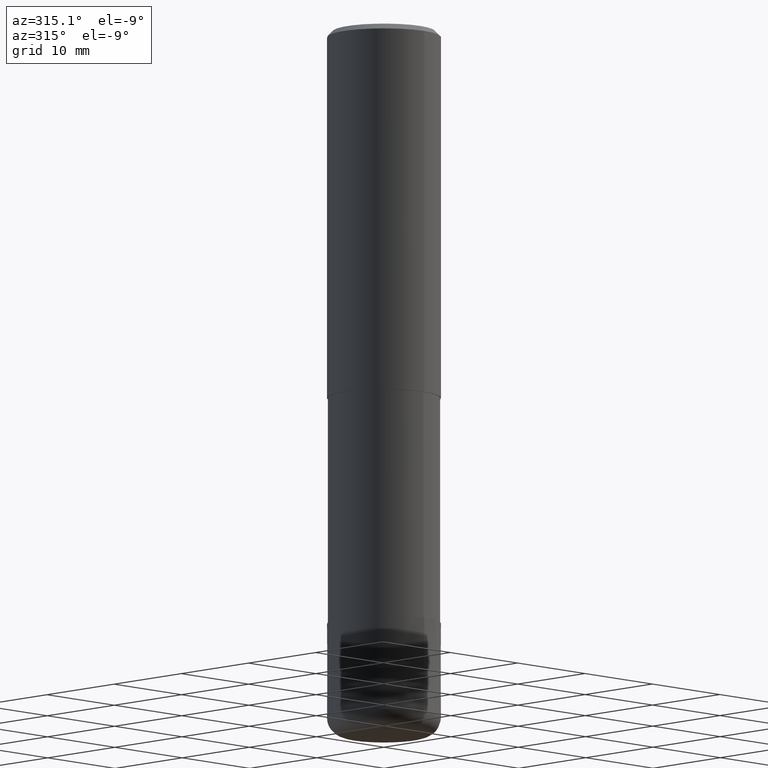
[diagram: clean part render]
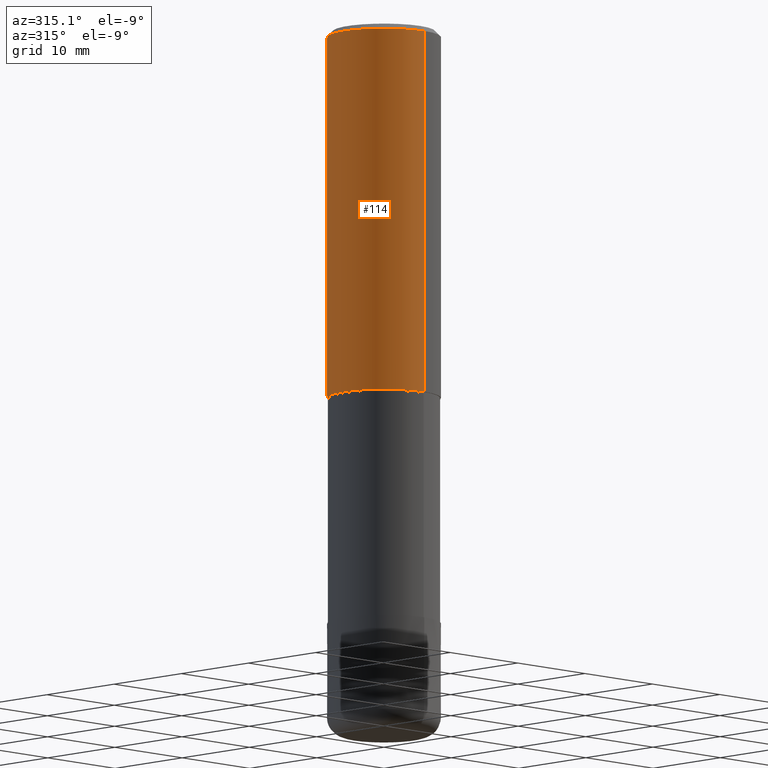
[diagram: same view with one face highlighted and labeled with its STEP entity id]
A machine part, auxiliary view. The second image highlights one B-rep face of the part: STEP entity #114.
In plain terms, the highlighted cylindrical surface (partial cylindrical patch) has radius 6 mm, axis along (-0, -0, 1).
Its self-contained STEP definition (entity closure, byte-faithful):
#100=VERTEX_POINT('',#239);
#114=ADVANCED_FACE('',(#254),#255,.T.);
#124=EDGE_CURVE('',#144,#200,#265,.T.);
#136=EDGE_CURVE('',#100,#166,#280,.T.);
#140=EDGE_CURVE('',#100,#200,#285,.T.);
#144=VERTEX_POINT('',#289);
#166=VERTEX_POINT('',#314);
#168=EDGE_CURVE('',#166,#144,#316,.T.);
#200=VERTEX_POINT('',#353);
#239=CARTESIAN_POINT('',(7.34763812293426E-016,-6.0,-39.0));
#254=FACE_OUTER_BOUND('',#406,.T.);
#255=CYLINDRICAL_SURFACE('',#407,6.0);
#265=LINE('',#417,#418);
#280=LINE('',#436,#437);
#285=CIRCLE('',#443,6.0);
#289=CARTESIAN_POINT('',(0.0,6.0,-0.600000000000001));
#314=CARTESIAN_POINT('',(7.34763812293426E-016,-6.0,-0.600000000000001));
#316=CIRCLE('',#484,6.0);
#353=CARTESIAN_POINT('',(0.0,6.0,-39.0));
#406=EDGE_LOOP('',(#577,#578,#579,#580));
#407=AXIS2_PLACEMENT_3D('',#581,#582,#583);
#417=CARTESIAN_POINT('',(-7.34763812293426E-016,6.0,-19.8));
#418=VECTOR('',#585,1.0);
#436=CARTESIAN_POINT('',(7.34763812293426E-016,-6.0,-19.8));
#437=VECTOR('',#608,1.0);
#443=AXIS2_PLACEMENT_3D('',#615,#616,#617);
#484=AXIS2_PLACEMENT_3D('',#654,#655,#656);
#577=ORIENTED_EDGE('',*,*,#124,.T.);
#578=ORIENTED_EDGE('',*,*,#140,.F.);
#579=ORIENTED_EDGE('',*,*,#136,.T.);
#580=ORIENTED_EDGE('',*,*,#168,.T.);
#581=CARTESIAN_POINT('',(0.0,0.0,-19.8));
#582=DIRECTION('',(-0.0,-0.0,1.0));
#583=DIRECTION('',(0.0,1.0,0.0));
#585=DIRECTION('',(0.0,0.0,-1.0));
#608=DIRECTION('',(-0.0,-0.0,1.0));
#615=CARTESIAN_POINT('',(0.0,0.0,-39.0));
#616=DIRECTION('',(0.0,0.0,-1.0));
#617=DIRECTION('',(0.0,1.0,0.0));
#654=CARTESIAN_POINT('',(0.0,0.0,-0.600000000000001));
#655=DIRECTION('',(0.0,0.0,-1.0));
#656=DIRECTION('',(0.0,1.0,0.0));